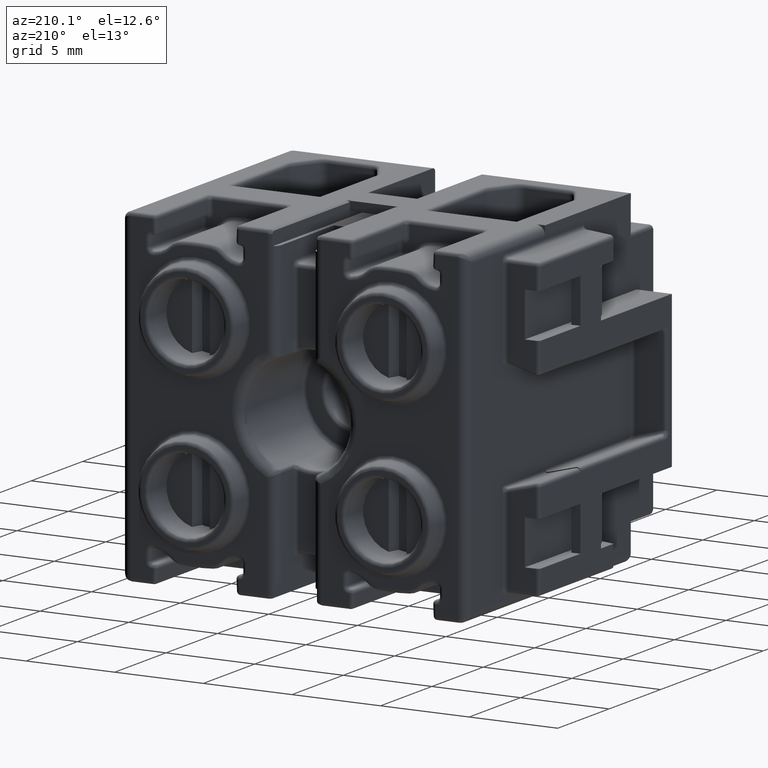
[diagram: clean part render]
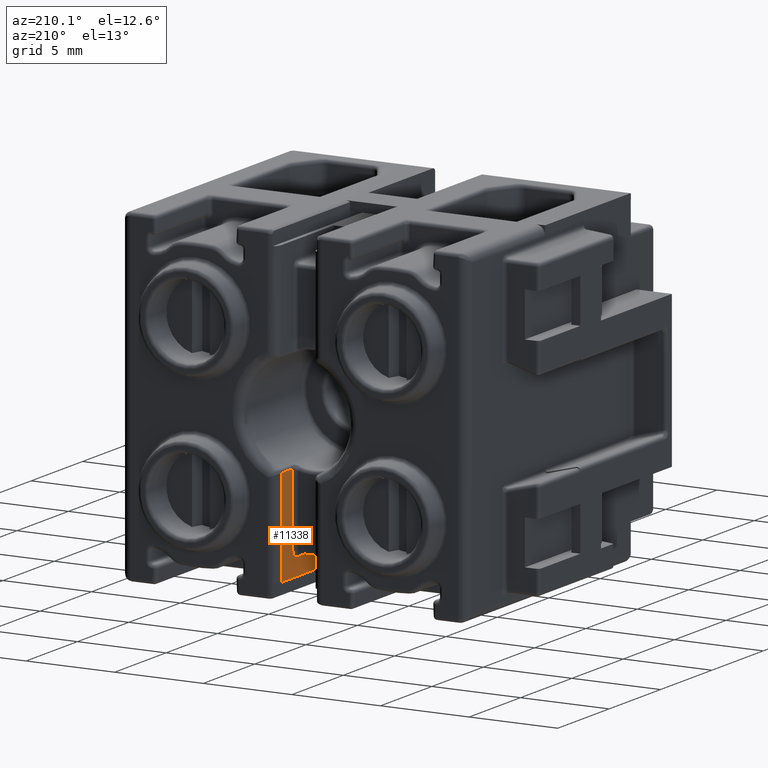
[diagram: same view with one face highlighted and labeled with its STEP entity id]
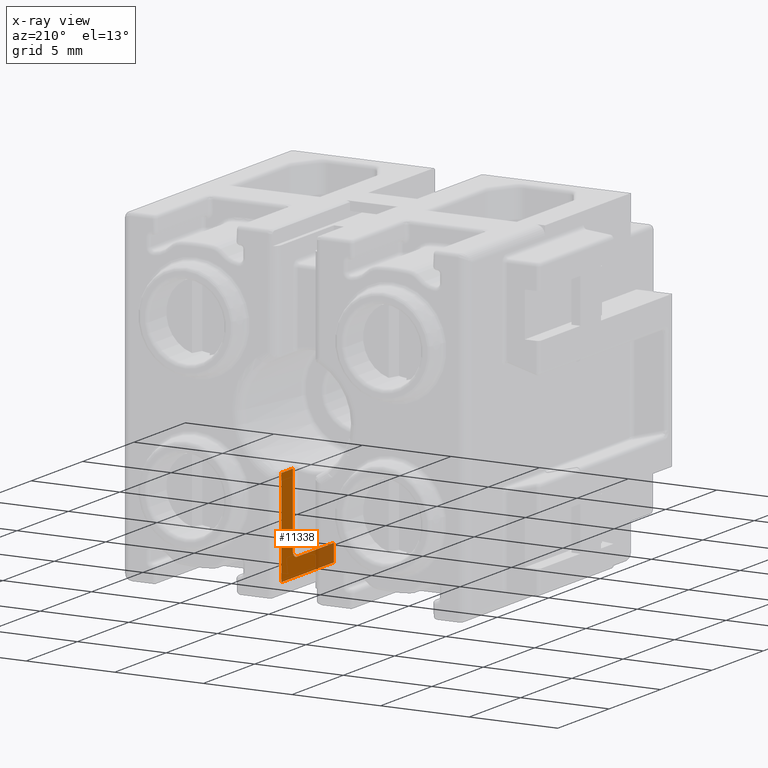
[diagram: x-ray of the same camera — body ghosted, the highlighted face saturated]
A machine part, auxiliary view. The second image highlights one B-rep face of the part: STEP entity #11338.
The next image is the same camera in x-ray: the body ghosted, the highlighted face saturated — about 18% of this face is hidden behind the body in this view.
In plain terms, the highlighted planar face has unit normal (1, 0, -0).
Its self-contained STEP definition (entity closure, byte-faithful):
#48 = EDGE_LOOP ( 'NONE', ( #21687, #21608, #21624, #21602, #21637, #21593, #21625 ) ) ;
#2916 = VECTOR ( 'NONE', #27008, 1000.000000000000000 ) ;
#2917 = VECTOR ( 'NONE', #26984, 1000.000000000000000 ) ;
#2948 = AXIS2_PLACEMENT_3D ( 'NONE', #27154, #27111, #27101 ) ;
#2953 = VECTOR ( 'NONE', #27203, 1000.000000000000000 ) ;
#2960 = VECTOR ( 'NONE', #27241, 1000.000000000000000 ) ;
#2967 = CIRCLE ( 'NONE', #2948, 0.4000000000000010200 ) ;
#4721 = VERTEX_POINT ( 'NONE', #5013 ) ;
#4729 = VERTEX_POINT ( 'NONE', #4987 ) ;
#4800 = VERTEX_POINT ( 'NONE', #5006 ) ;
#4844 = VERTEX_POINT ( 'NONE', #5057 ) ;
#4987 = CARTESIAN_POINT ( 'NONE',  ( 10.00655536988784200, 42.64973753280829500, -17.22283801961510400 ) ) ;
#5006 = CARTESIAN_POINT ( 'NONE',  ( 10.00655536988784200, 42.64973753280829500, -13.13931741445340000 ) ) ;
#5013 = CARTESIAN_POINT ( 'NONE',  ( 10.00655536988784200, 38.64973753280830200, -17.62283801961514800 ) ) ;
#5057 = CARTESIAN_POINT ( 'NONE',  ( 10.00655536988784200, 42.24973753280829700, -17.62283801961514800 ) ) ;
#6284 = VERTEX_POINT ( 'NONE', #8600 ) ;
#6296 = VERTEX_POINT ( 'NONE', #8563 ) ;
#6495 = VERTEX_POINT ( 'NONE', #8813 ) ;
#7761 = EDGE_CURVE ( 'NONE', #4721, #4844, #27002, .T. ) ;
#7768 = EDGE_CURVE ( 'NONE', #4800, #6296, #27001, .T. ) ;
#7790 = EDGE_CURVE ( 'NONE', #4844, #4729, #2967, .T. ) ;
#7802 = EDGE_CURVE ( 'NONE', #6495, #4721, #27187, .T. ) ;
#7804 = EDGE_CURVE ( 'NONE', #4729, #4800, #27194, .T. ) ;
#8563 = CARTESIAN_POINT ( 'NONE',  ( 10.00655536988784200, 43.74973753280829700, -13.13931741445340000 ) ) ;
#8600 = CARTESIAN_POINT ( 'NONE',  ( 10.00655536988784200, 43.74973753280829700, -18.60451159725455000 ) ) ;
#8813 = CARTESIAN_POINT ( 'NONE',  ( 10.00655536988784200, 38.64973753280830200, -18.60451159725455000 ) ) ;
#11135 = EDGE_CURVE ( 'NONE', #6296, #6284, #14222, .T. ) ;
#11338 = ADVANCED_FACE ( 'NONE', ( #25874 ), #25865, .F. ) ;
#14200 = CARTESIAN_POINT ( 'NONE',  ( 10.00655536988784200, 43.74973753280829700, -18.92283801961510300 ) ) ;
#14216 = DIRECTION ( 'NONE',  ( -0.0000000000000000000, -0.0000000000000000000, -1.000000000000000000 ) ) ;
#14222 = LINE ( 'NONE', #14200, #15486 ) ;
#15486 = VECTOR ( 'NONE', #14216, 1000.000000000000000 ) ;
#15700 = AXIS2_PLACEMENT_3D ( 'NONE', #25884, #25847, #25882 ) ;
#21593 = ORIENTED_EDGE ( 'NONE', *, *, #7761, .T. ) ;
#21602 = ORIENTED_EDGE ( 'NONE', *, *, #31956, .F. ) ;
#21608 = ORIENTED_EDGE ( 'NONE', *, *, #7768, .T. ) ;
#21624 = ORIENTED_EDGE ( 'NONE', *, *, #11135, .T. ) ;
#21625 = ORIENTED_EDGE ( 'NONE', *, *, #7790, .T. ) ;
#21637 = ORIENTED_EDGE ( 'NONE', *, *, #7802, .T. ) ;
#21687 = ORIENTED_EDGE ( 'NONE', *, *, #7804, .T. ) ;
#25847 = DIRECTION ( 'NONE',  ( 1.000000000000000000, 0.0000000000000000000, -0.0000000000000000000 ) ) ;
#25865 = PLANE ( 'NONE',  #15700 ) ;
#25874 = FACE_OUTER_BOUND ( 'NONE', #48, .T. ) ;
#25882 = DIRECTION ( 'NONE',  ( 0.0000000000000000000, 0.0000000000000000000, 1.000000000000000000 ) ) ;
#25884 = CARTESIAN_POINT ( 'NONE',  ( 10.00655536988784200, 42.44973753280830000, -0.8728380196151400700 ) ) ;
#26981 = CARTESIAN_POINT ( 'NONE',  ( 10.00655536988784200, 42.44973753280830000, -17.62283801961514800 ) ) ;
#26984 = DIRECTION ( 'NONE',  ( -0.0000000000000000000, 1.000000000000000000, -0.0000000000000000000 ) ) ;
#27001 = LINE ( 'NONE', #27004, #2916 ) ;
#27002 = LINE ( 'NONE', #26981, #2917 ) ;
#27004 = CARTESIAN_POINT ( 'NONE',  ( 10.00655536988784200, 42.44973753280830000, -13.13931741445340000 ) ) ;
#27008 = DIRECTION ( 'NONE',  ( 0.0000000000000000000, 1.000000000000000000, 0.0000000000000000000 ) ) ;
#27101 = DIRECTION ( 'NONE',  ( 0.0000000000000000000, 0.0000000000000000000, -1.000000000000000000 ) ) ;
#27111 = DIRECTION ( 'NONE',  ( 1.000000000000000000, 0.0000000000000000000, 0.0000000000000000000 ) ) ;
#27154 = CARTESIAN_POINT ( 'NONE',  ( 10.00655536988784200, 42.24973753280829700, -17.22283801961510400 ) ) ;
#27187 = LINE ( 'NONE', #27244, #2960 ) ;
#27194 = LINE ( 'NONE', #27209, #2953 ) ;
#27203 = DIRECTION ( 'NONE',  ( 0.0000000000000000000, 0.0000000000000000000, 1.000000000000000000 ) ) ;
#27209 = CARTESIAN_POINT ( 'NONE',  ( 10.00655536988784200, 42.64973753280829500, -13.00126514436129800 ) ) ;
#27241 = DIRECTION ( 'NONE',  ( 0.0000000000000000000, 0.0000000000000000000, 1.000000000000000000 ) ) ;
#27244 = CARTESIAN_POINT ( 'NONE',  ( 10.00655536988784200, 38.64973753280830200, -0.8728380196151400700 ) ) ;
#28511 = VECTOR ( 'NONE', #29579, 1000.000000000000000 ) ;
#29579 = DIRECTION ( 'NONE',  ( 0.0000000000000000000, 1.000000000000000000, 0.0000000000000000000 ) ) ;
#29606 = CARTESIAN_POINT ( 'NONE',  ( 10.00655536988784200, 42.44973753280830000, -18.60451159725455000 ) ) ;
#29619 = LINE ( 'NONE', #29606, #28511 ) ;
#31956 = EDGE_CURVE ( 'NONE', #6495, #6284, #29619, .T. ) ;